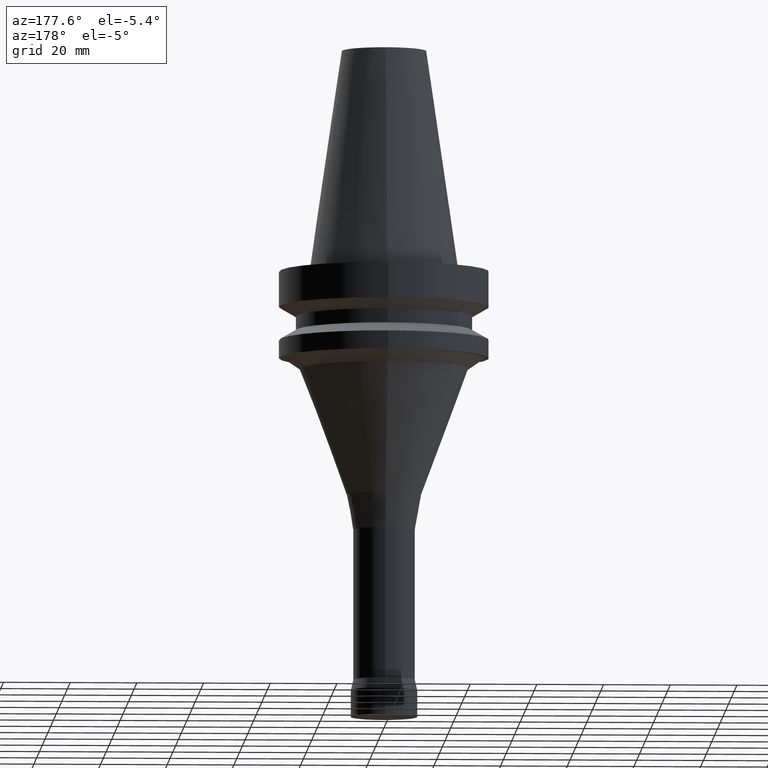
[diagram: clean part render]
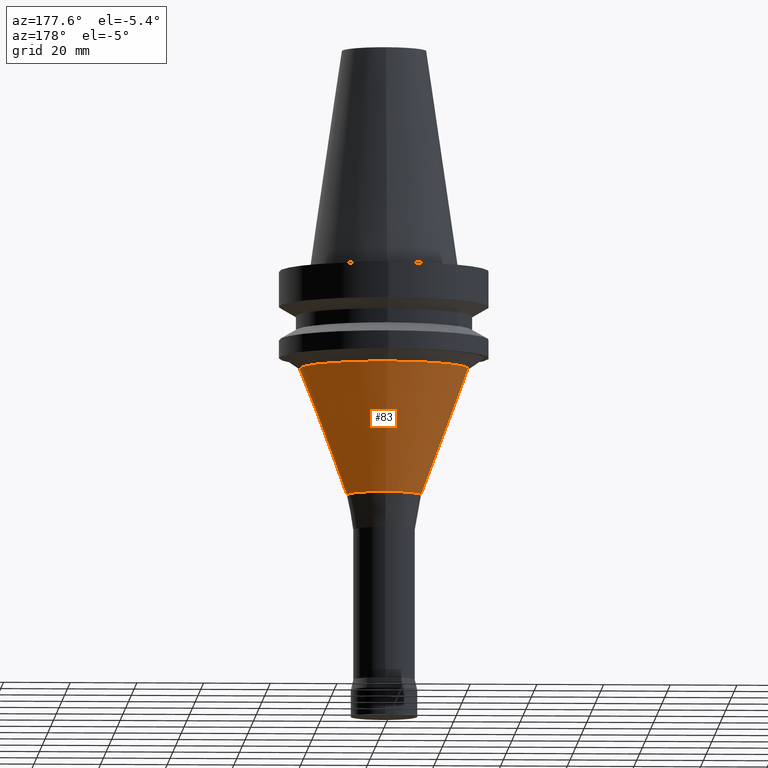
[diagram: same view with one face highlighted and labeled with its STEP entity id]
A machine part, auxiliary view. The second image highlights one B-rep face of the part: STEP entity #83.
In plain terms, the highlighted conical surface has half-angle 20.487 deg.
Its self-contained STEP definition (entity closure, byte-faithful):
#83=ADVANCED_FACE('',(#117,#118),#119,.T.);
#117=FACE_BOUND('',#166,.T.);
#118=FACE_BOUND('',#167,.T.);
#119=CONICAL_SURFACE('',#168,18.2318877569764,0.357572329269445);
#166=EDGE_LOOP('',(#231));
#167=EDGE_LOOP('',(#232));
#168=AXIS2_PLACEMENT_3D('',#233,#234,#235);
#231=ORIENTED_EDGE('',*,*,#283,.F.);
#232=ORIENTED_EDGE('',*,*,#282,.T.);
#233=CARTESIAN_POINT('',(3.01328732613693E-015,6.02657465227386E-015,-49.2107165630923));
#234=DIRECTION('',(-6.12323399573676E-017,-1.22464679914735E-016,1.0));
#235=DIRECTION('',(-1.23259516440783E-032,1.0,1.22464679914735E-016));
#282=EDGE_CURVE('',#306,#306,#307,.T.);
#283=EDGE_CURVE('',#308,#308,#309,.T.);
#306=VERTEX_POINT('',#338);
#307=CIRCLE('',#339,25.31625364);
#308=VERTEX_POINT('',#340);
#309=CIRCLE('',#341,11.1475218739529);
#338=CARTESIAN_POINT('',(1.85227793223674E-015,25.31625364,-30.24999426));
#339=AXIS2_PLACEMENT_3D('',#378,#379,#380);
#340=CARTESIAN_POINT('',(4.17429672003712E-015,11.1475218739529,-68.1714388661846));
#341=AXIS2_PLACEMENT_3D('',#381,#382,#383);
#378=CARTESIAN_POINT('',(1.85227793223674E-015,3.70455586447348E-015,-30.24999426));
#379=DIRECTION('',(6.12323399573677E-017,1.22464679914735E-016,-1.0));
#380=DIRECTION('',(-1.23259516440783E-032,1.0,1.22464679914735E-016));
#381=CARTESIAN_POINT('',(4.17429672003712E-015,8.34859344007424E-015,-68.1714388661846));
#382=DIRECTION('',(6.12323399573677E-017,1.22464679914735E-016,-1.0));
#383=DIRECTION('',(-1.23259516440783E-032,1.0,1.22464679914735E-016));